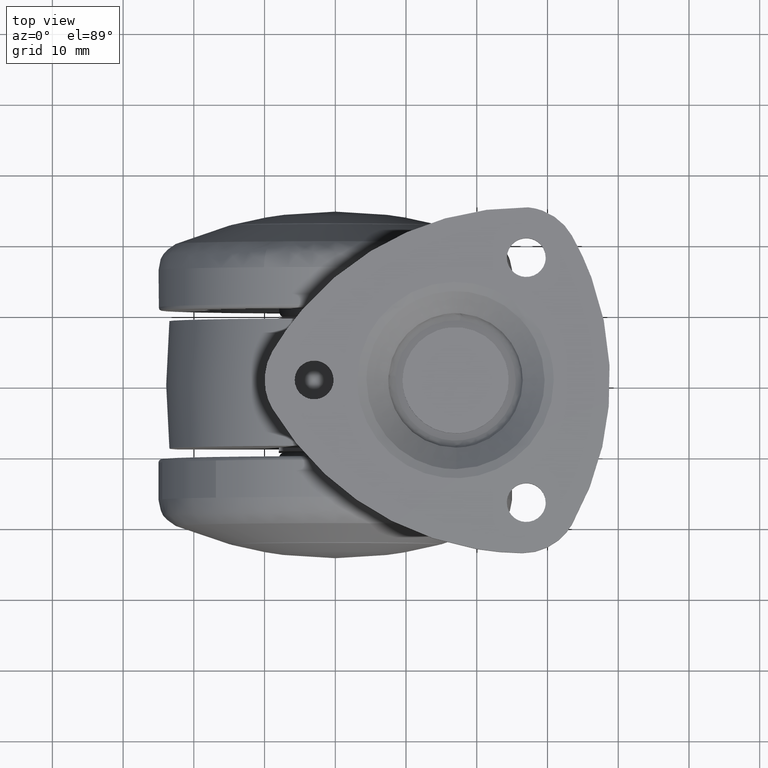
[diagram: clean part render]
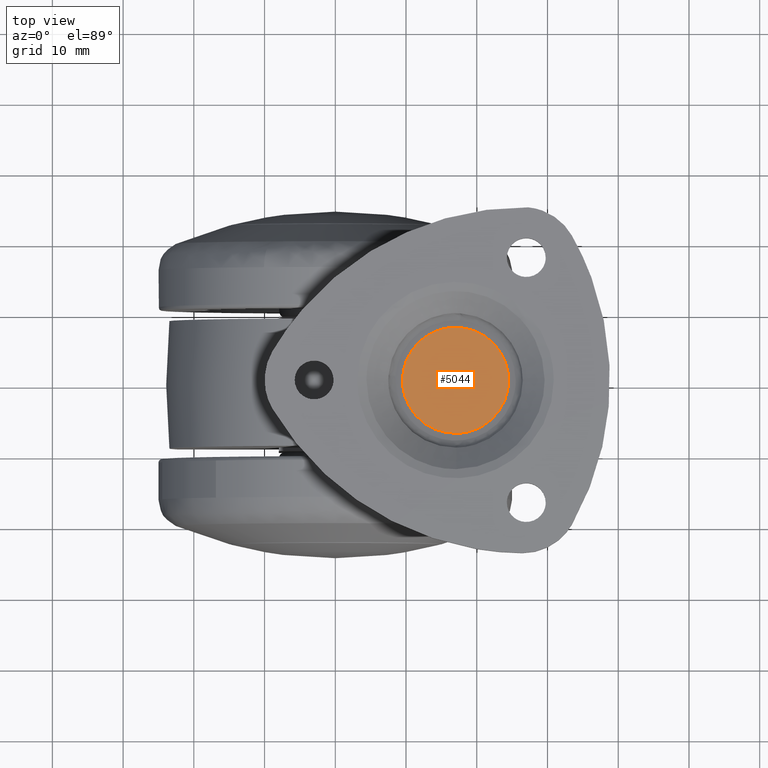
[diagram: same view with one face highlighted and labeled with its STEP entity id]
A machine part, top view. The second image highlights one B-rep face of the part: STEP entity #5044.
In plain terms, the highlighted face is a freeform B-spline surface patch.
Its self-contained STEP definition (entity closure, byte-faithful):
#4858=CARTESIAN_POINT('',(16.114751771778600,7.447572461839965,37.0));
#4859=VERTEX_POINT('',#4858);
#4865=CARTESIAN_POINT('',(24.500000000000000,-2.755364E-015,37.0));
#4866=VERTEX_POINT('',#4865);
#4867=CARTESIAN_POINT('',(16.114751771778604,7.447572461839965,37.0));
#4868=CARTESIAN_POINT('',(16.555823413560130,7.499999999999997,37.0));
#4869=CARTESIAN_POINT('',(17.0,7.499999999999997,37.0));
#4870=CARTESIAN_POINT('',(24.499999999999993,7.499999999999997,37.000000000000007));
#4871=CARTESIAN_POINT('',(24.500000000000000,-2.755364E-015,37.0));
#4879=(BOUNDED_CURVE()B_SPLINE_CURVE(2,(#4867,#4868,#4869,#4870,#4871),.UNSPECIFIED.,.F.,.U.)B_SPLINE_CURVE_WITH_KNOTS((3,2,3),(0.229562667120480,0.250000000000000,0.500000000000000),.UNSPECIFIED.)CURVE()GEOMETRIC_REPRESENTATION_ITEM()RATIONAL_B_SPLINE_CURVE((0.956027133661637,0.976056175155821,1.0,0.707106781186547,1.0))REPRESENTATION_ITEM(''));
#4880=EDGE_CURVE('',#4859,#4866,#4879,.T.);
#4882=CARTESIAN_POINT('',(17.457864046568250,-7.486010988160528,37.0));
#4883=VERTEX_POINT('',#4882);
#4884=CARTESIAN_POINT('',(24.500000000000000,-2.755364E-015,37.0));
#4885=CARTESIAN_POINT('',(24.499999999999993,-7.055295501685420,36.999999999999993));
#4886=CARTESIAN_POINT('',(17.457864046568250,-7.486010988160528,36.999999999999993));
#4894=(BOUNDED_CURVE()B_SPLINE_CURVE(2,(#4884,#4885,#4886),.UNSPECIFIED.,.F.,.U.)B_SPLINE_CURVE_WITH_KNOTS((3,3),(0.500000000000000,0.739332962239349),.UNSPECIFIED.)CURVE()GEOMETRIC_REPRESENTATION_ITEM()RATIONAL_B_SPLINE_CURVE((1.0,0.719603993286234,0.976072041667588))REPRESENTATION_ITEM(''));
#4895=EDGE_CURVE('',#4866,#4883,#4894,.T.);
#4969=CARTESIAN_POINT('',(9.500000000000002,-2.755364E-015,37.0));
#4970=VERTEX_POINT('',#4969);
#4971=CARTESIAN_POINT('',(17.457864046568243,-7.486010988160528,37.0));
#4972=CARTESIAN_POINT('',(17.229145724796393,-7.500000000000003,37.0));
#4973=CARTESIAN_POINT('',(17.0,-7.500000000000003,37.0));
#4974=CARTESIAN_POINT('',(9.500000000000002,-7.500000000000004,37.000000000000007));
#4975=CARTESIAN_POINT('',(9.500000000000002,-2.755364E-015,37.0));
#4983=(BOUNDED_CURVE()B_SPLINE_CURVE(2,(#4971,#4972,#4973,#4974,#4975),.UNSPECIFIED.,.F.,.U.)B_SPLINE_CURVE_WITH_KNOTS((3,2,3),(0.739332962239349,0.750000000000000,1.0),.UNSPECIFIED.)CURVE()GEOMETRIC_REPRESENTATION_ITEM()RATIONAL_B_SPLINE_CURVE((0.976072041667588,0.987502787900313,1.0,0.707106781186547,1.0))REPRESENTATION_ITEM(''));
#4984=EDGE_CURVE('',#4883,#4970,#4983,.T.);
#4986=CARTESIAN_POINT('',(9.500000000000002,-2.755364E-015,37.0));
#4987=CARTESIAN_POINT('',(9.500000000000002,6.661316629344476,36.999999999999993));
#4988=CARTESIAN_POINT('',(16.114751771778600,7.447572461839965,37.0));
#4996=(BOUNDED_CURVE()B_SPLINE_CURVE(2,(#4986,#4987,#4988),.UNSPECIFIED.,.F.,.U.)B_SPLINE_CURVE_WITH_KNOTS((3,3),(0.0,0.229562667120480),.UNSPECIFIED.)CURVE()GEOMETRIC_REPRESENTATION_ITEM()RATIONAL_B_SPLINE_CURVE((1.0,0.731050606030726,0.956027133661638))REPRESENTATION_ITEM(''));
#4997=EDGE_CURVE('',#4970,#4859,#4996,.T.);
#5033=CARTESIAN_POINT('',(25.249249970927089,-8.249067709211978,37.0));
#5034=CARTESIAN_POINT('',(8.750749626741561,-8.249067709211978,37.0));
#5035=CARTESIAN_POINT('',(25.249249970927089,8.249113574986128,37.0));
#5036=CARTESIAN_POINT('',(8.750749626741561,8.249113574986128,37.0));
#5037=B_SPLINE_SURFACE_WITH_KNOTS('',1,1,((#5033,#5035),(#5034,#5036)),.UNSPECIFIED.,.F.,.F.,.U.,(2,2),(2,2),(0.0,16.498500344185530),(0.0,16.498181284198100),.UNSPECIFIED.);
#5038=ORIENTED_EDGE('',*,*,#4984,.F.);
#5039=ORIENTED_EDGE('',*,*,#4895,.F.);
#5040=ORIENTED_EDGE('',*,*,#4880,.F.);
#5041=ORIENTED_EDGE('',*,*,#4997,.F.);
#5042=EDGE_LOOP('',(#5038,#5039,#5040,#5041));
#5043=FACE_OUTER_BOUND('',#5042,.T.);
#5044=ADVANCED_FACE('',(#5043),#5037,.F.);